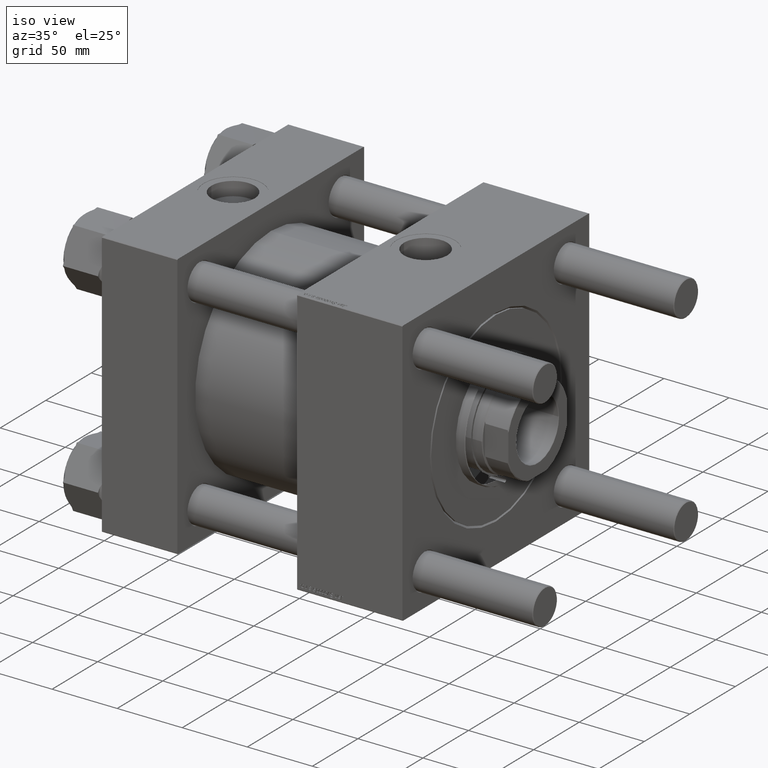
[diagram: clean part render]
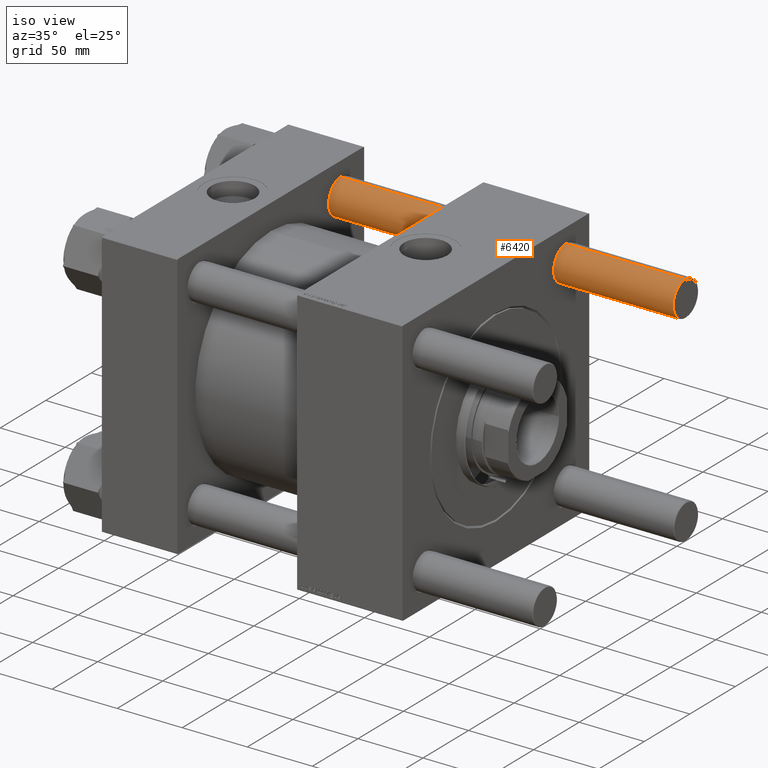
[diagram: same view with one face highlighted and labeled with its STEP entity id]
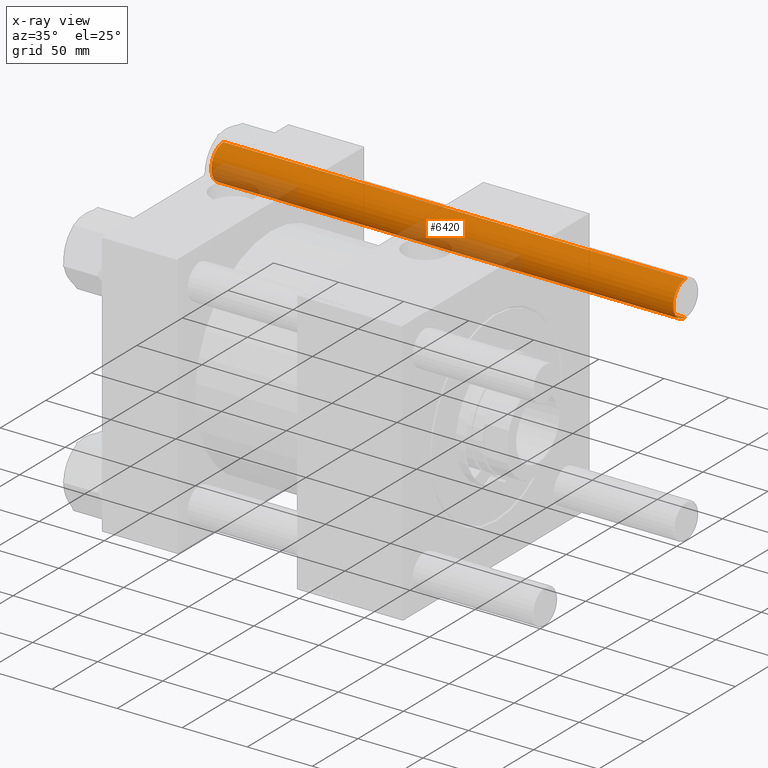
[diagram: x-ray of the same camera — body ghosted, the highlighted face saturated]
A machine part, iso view. The second image highlights one B-rep face of the part: STEP entity #6420.
The next image is the same camera in x-ray: the body ghosted, the highlighted face saturated — about 19% of this face is hidden behind the body in this view.
In plain terms, the highlighted cylindrical surface (edge-blend (fillet) strip) has radius 13.5 mm, axis along (1, -0, -0).
Its self-contained STEP definition (entity closure, byte-faithful):
#1929 = CARTESIAN_POINT ( 'NONE',  ( 13.50000000000000000, 1.653273178848926867E-15, 356.0000000000000000 ) ) ;
#4175 = ORIENTED_EDGE ( 'NONE', *, *, #56299, .T. ) ;
#4590 = CARTESIAN_POINT ( 'NONE',  ( -13.50000000000000000, 0.000000000000000000, 355.5000000000000000 ) ) ;
#6410 = ORIENTED_EDGE ( 'NONE', *, *, #45929, .T. ) ;
#6420 = ADVANCED_FACE ( 'NONE', ( #20760 ), #11759, .T. ) ;
#7960 = DIRECTION ( 'NONE',  ( 0.000000000000000000, 0.000000000000000000, -1.000000000000000000 ) ) ;
#8557 = CARTESIAN_POINT ( 'NONE',  ( 0.000000000000000000, 0.000000000000000000, 356.0000000000000000 ) ) ;
#11311 = AXIS2_PLACEMENT_3D ( 'NONE', #26551, #7960, #13174 ) ;
#11759 = CYLINDRICAL_SURFACE ( 'NONE', #53919, 13.50000000000000000 ) ;
#12965 = ORIENTED_EDGE ( 'NONE', *, *, #27339, .T. ) ;
#13174 = DIRECTION ( 'NONE',  ( 1.000000000000000000, 0.000000000000000000, 0.000000000000000000 ) ) ;
#18088 = DIRECTION ( 'NONE',  ( -0.000000000000000000, -0.000000000000000000, 1.000000000000000000 ) ) ;
#18878 = EDGE_LOOP ( 'NONE', ( #34490, #6410, #12965, #4175 ) ) ;
#20760 = FACE_OUTER_BOUND ( 'NONE', #18878, .T. ) ;
#20993 = CARTESIAN_POINT ( 'NONE',  ( -13.50000000000000000, 0.000000000000000000, 0.5000000000000004441 ) ) ;
#21586 = CARTESIAN_POINT ( 'NONE',  ( 0.000000000000000000, 0.000000000000000000, 0.5000000000000004441 ) ) ;
#22102 = CARTESIAN_POINT ( 'NONE',  ( 13.50000000000000000, 1.653273178848926867E-15, 0.5000000000000004441 ) ) ;
#26551 = CARTESIAN_POINT ( 'NONE',  ( 0.000000000000000000, 0.000000000000000000, 355.5000000000000000 ) ) ;
#27339 = EDGE_CURVE ( 'NONE', #34176, #37295, #33306, .T. ) ;
#27988 = CIRCLE ( 'NONE', #11311, 13.50000000000000000 ) ;
#29203 = DIRECTION ( 'NONE',  ( -0.000000000000000000, -0.000000000000000000, -1.000000000000000000 ) ) ;
#33306 = LINE ( 'NONE', #33872, #56137 ) ;
#33560 = LINE ( 'NONE', #1929, #54049 ) ;
#33872 = CARTESIAN_POINT ( 'NONE',  ( -13.50000000000000000, 0.000000000000000000, 356.0000000000000000 ) ) ;
#34176 = VERTEX_POINT ( 'NONE', #4590 ) ;
#34490 = ORIENTED_EDGE ( 'NONE', *, *, #47859, .F. ) ;
#36688 = CIRCLE ( 'NONE', #50570, 13.50000000000000000 ) ;
#37295 = VERTEX_POINT ( 'NONE', #20993 ) ;
#38447 = DIRECTION ( 'NONE',  ( -0.000000000000000000, -0.000000000000000000, -1.000000000000000000 ) ) ;
#39024 = DIRECTION ( 'NONE',  ( -1.000000000000000000, 0.000000000000000000, 0.000000000000000000 ) ) ;
#45096 = VERTEX_POINT ( 'NONE', #22102 ) ;
#45581 = VERTEX_POINT ( 'NONE', #56498 ) ;
#45929 = EDGE_CURVE ( 'NONE', #45581, #34176, #27988, .T. ) ;
#47859 = EDGE_CURVE ( 'NONE', #45581, #45096, #33560, .T. ) ;
#50570 = AXIS2_PLACEMENT_3D ( 'NONE', #21586, #18088, #56693 ) ;
#51585 = DIRECTION ( 'NONE',  ( -0.000000000000000000, -0.000000000000000000, -1.000000000000000000 ) ) ;
#53919 = AXIS2_PLACEMENT_3D ( 'NONE', #8557, #38447, #39024 ) ;
#54049 = VECTOR ( 'NONE', #29203, 1000.000000000000000 ) ;
#56137 = VECTOR ( 'NONE', #51585, 1000.000000000000000 ) ;
#56299 = EDGE_CURVE ( 'NONE', #37295, #45096, #36688, .T. ) ;
#56498 = CARTESIAN_POINT ( 'NONE',  ( 13.50000000000000000, 1.653273178848926867E-15, 355.5000000000000000 ) ) ;
#56693 = DIRECTION ( 'NONE',  ( 1.000000000000000000, 0.000000000000000000, 0.000000000000000000 ) ) ;